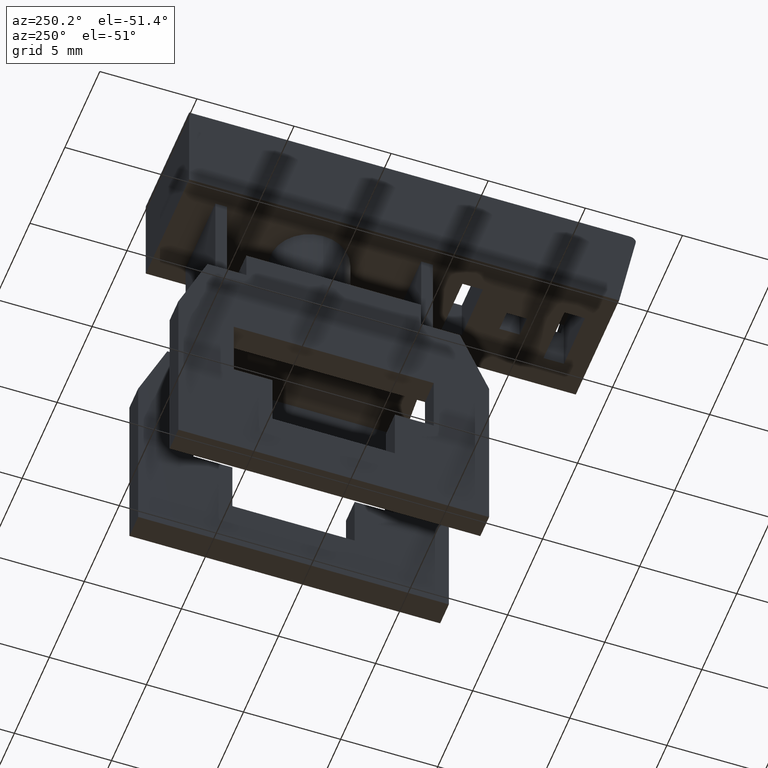
[diagram: clean part render]
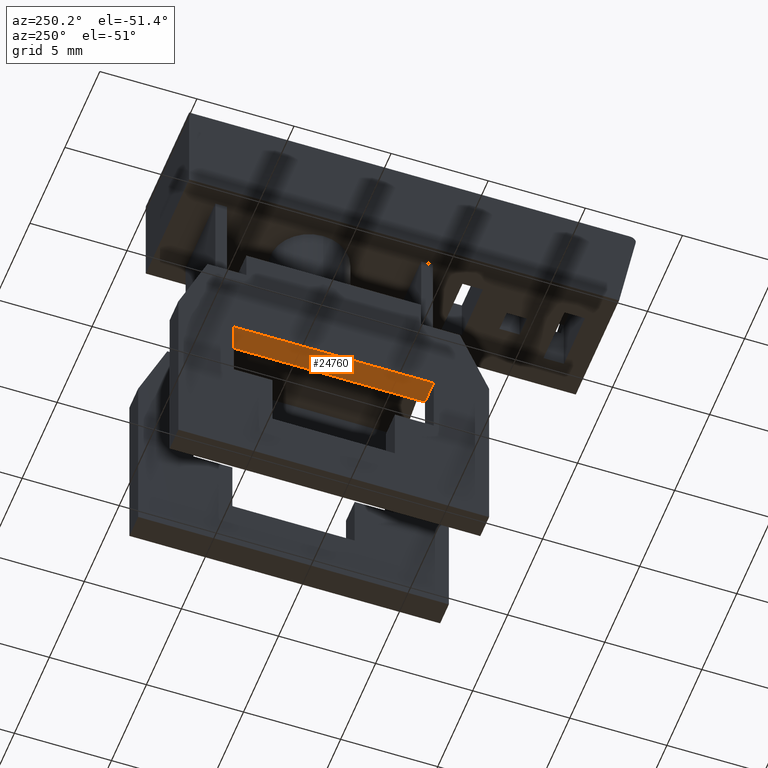
[diagram: same view with one face highlighted and labeled with its STEP entity id]
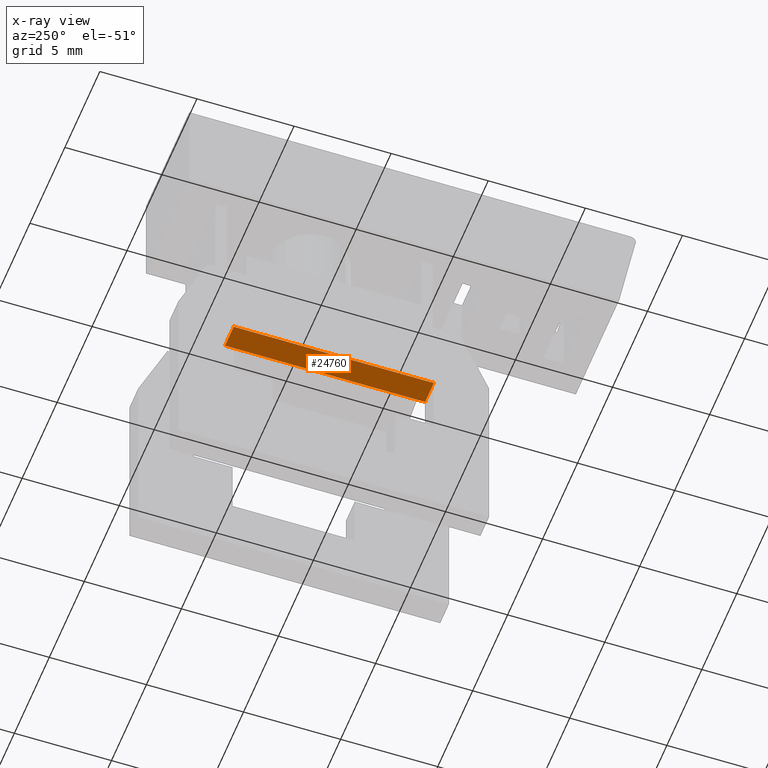
[diagram: x-ray of the same camera — body ghosted, the highlighted face saturated]
A machine part, auxiliary view. The second image highlights one B-rep face of the part: STEP entity #24760.
The next image is the same camera in x-ray: the body ghosted, the highlighted face saturated — about 0% of this face is hidden behind the body in this view.
In plain terms, the highlighted planar face has unit normal (-0, -0, 1).
Its self-contained STEP definition (entity closure, byte-faithful):
#20060=CARTESIAN_POINT('',(0.7000024,13.7,-1.486996));
#20070=DIRECTION('',(-0.,1.,0.));
#20080=DIRECTION('',(6.12323399573677E-17,0.,1.));
#20090=AXIS2_PLACEMENT_3D('',#20060,#20070,#20080);
#20100=PLANE('',#20090);
#23320=CARTESIAN_POINT('',(-5.75,13.7,2.84999999999999));
#23330=VERTEX_POINT('',#23320);
#23360=CARTESIAN_POINT('',(-5.75,13.7,0.));
#23370=DIRECTION('',(0.,0.,1.));
#23380=VECTOR('',#23370,1.);
#23390=LINE('',#23360,#23380);
#23400=CARTESIAN_POINT('',(-5.75,13.7,13.15));
#23410=VERTEX_POINT('',#23400);
#23420=EDGE_CURVE('',#23330,#23410,#23390,.T.);
#24510=ORIENTED_EDGE('',*,*,#23420,.T.);
#24520=CARTESIAN_POINT('',(0.,13.7,2.84999999999999));
#24530=DIRECTION('',(-1.,0.,0.));
#24540=VECTOR('',#24530,1.);
#24550=LINE('',#24520,#24540);
#24560=CARTESIAN_POINT('',(-7.,13.7,2.84999999999999));
#24570=VERTEX_POINT('',#24560);
#24580=EDGE_CURVE('',#23330,#24570,#24550,.T.);
#24590=ORIENTED_EDGE('',*,*,#24580,.F.);
#24600=CARTESIAN_POINT('',(-7.,13.7,0.));
#24610=DIRECTION('',(0.,0.,-1.));
#24620=VECTOR('',#24610,1.);
#24630=LINE('',#24600,#24620);
#24640=CARTESIAN_POINT('',(-7.,13.7,13.15));
#24650=VERTEX_POINT('',#24640);
#24660=EDGE_CURVE('',#24650,#24570,#24630,.T.);
#24670=ORIENTED_EDGE('',*,*,#24660,.T.);
#24680=CARTESIAN_POINT('',(0.,13.7,13.15));
#24690=DIRECTION('',(1.,0.,0.));
#24700=VECTOR('',#24690,1.);
#24710=LINE('',#24680,#24700);
#24720=EDGE_CURVE('',#24650,#23410,#24710,.T.);
#24730=ORIENTED_EDGE('',*,*,#24720,.F.);
#24740=EDGE_LOOP('',(#24730,#24670,#24590,#24510));
#24750=FACE_OUTER_BOUND('',#24740,.T.);
#24760=ADVANCED_FACE('',(#24750),#20100,.F.);